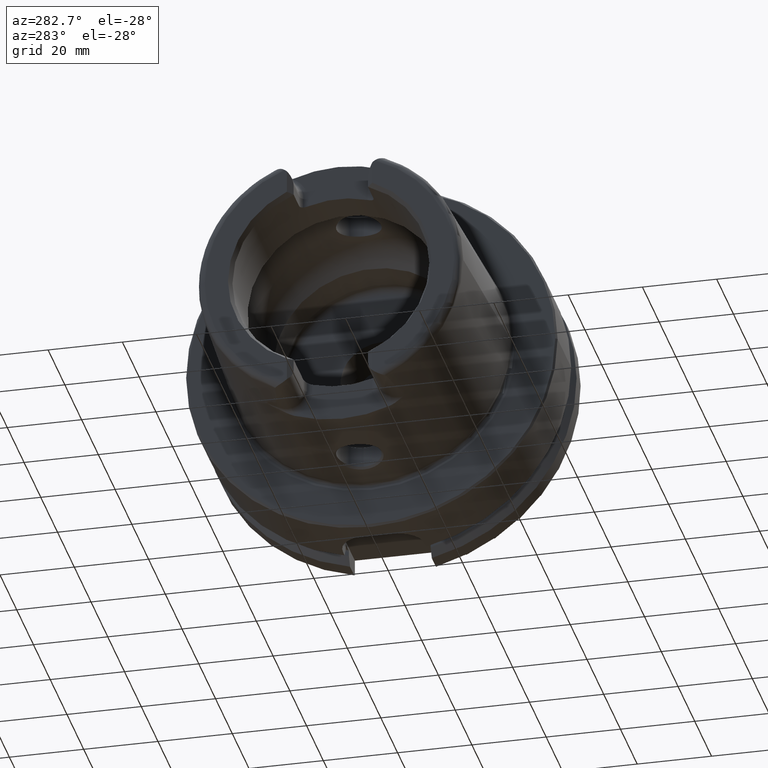
[diagram: clean part render]
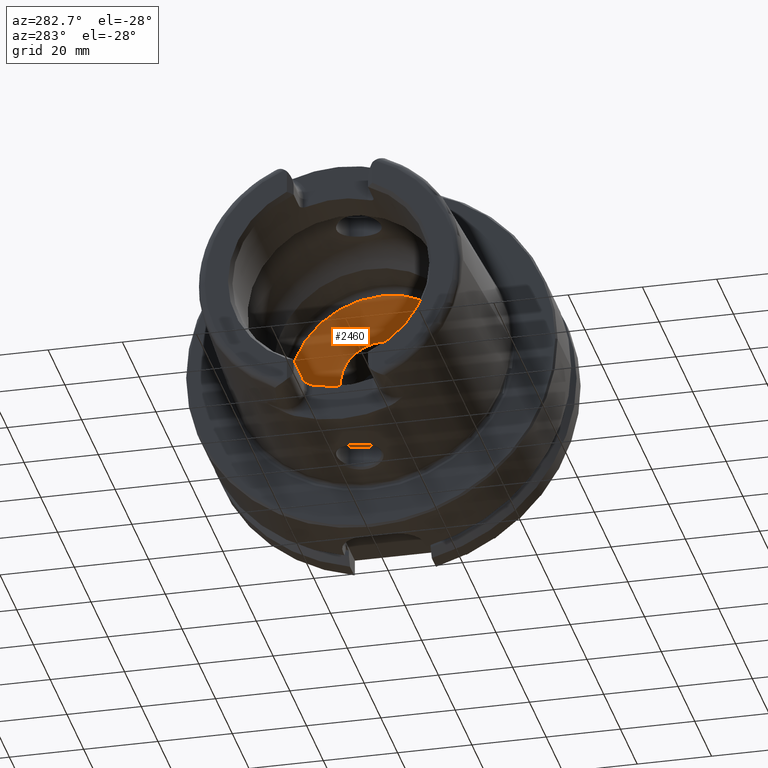
[diagram: same view with one face highlighted and labeled with its STEP entity id]
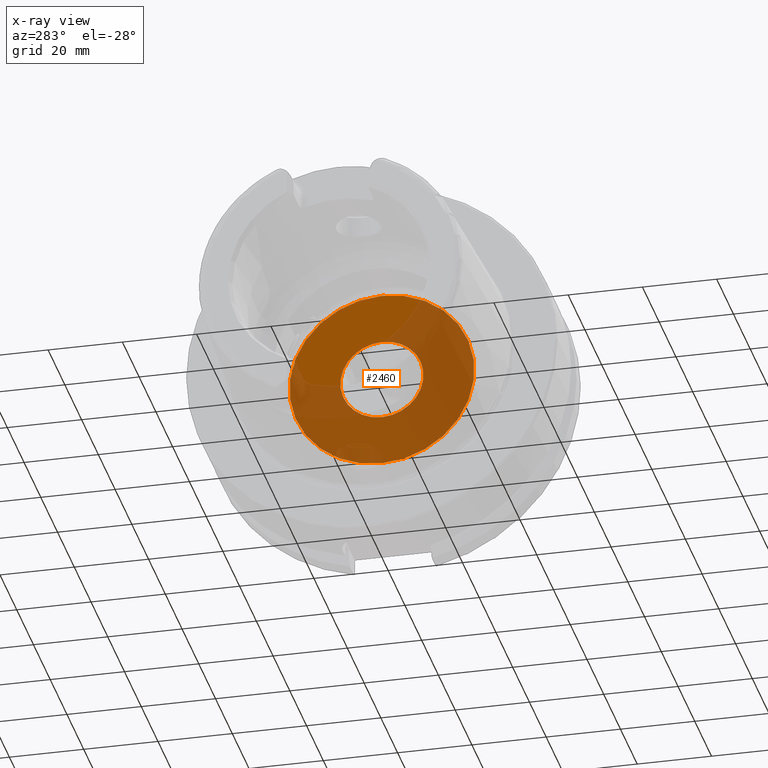
[diagram: x-ray of the same camera — body ghosted, the highlighted face saturated]
A machine part, auxiliary view. The second image highlights one B-rep face of the part: STEP entity #2460.
The next image is the same camera in x-ray: the body ghosted, the highlighted face saturated — about 70% of this face is hidden behind the body in this view.
In plain terms, the highlighted planar face has unit normal (1, 0, 0).
Its self-contained STEP definition (entity closure, byte-faithful):
#99=FACE_BOUND('',#573,.T.);
#227=CIRCLE('',#2750,11.188101);
#234=CIRCLE('',#2762,24.9);
#294=PLANE('',#2761);
#417=FACE_OUTER_BOUND('',#572,.T.);
#572=EDGE_LOOP('',(#2219));
#573=EDGE_LOOP('',(#2220));
#1153=VERTEX_POINT('',#5403);
#1159=VERTEX_POINT('',#5423);
#1511=EDGE_CURVE('',#1153,#1153,#227,.T.);
#1520=EDGE_CURVE('',#1159,#1159,#234,.T.);
#2219=ORIENTED_EDGE('',*,*,#1520,.T.);
#2220=ORIENTED_EDGE('',*,*,#1511,.T.);
#2460=ADVANCED_FACE('',(#417,#99),#294,.F.);
#2750=AXIS2_PLACEMENT_3D('',#5404,#3414,#3415);
#2761=AXIS2_PLACEMENT_3D('',#5422,#3438,#3439);
#2762=AXIS2_PLACEMENT_3D('',#5424,#3440,#3441);
#3414=DIRECTION('center_axis',(1.,0.,0.));
#3415=DIRECTION('ref_axis',(0.,0.,1.));
#3438=DIRECTION('center_axis',(1.,0.,0.));
#3439=DIRECTION('ref_axis',(0.,0.,-1.));
#3440=DIRECTION('center_axis',(-1.,0.,0.));
#3441=DIRECTION('ref_axis',(0.,0.,1.));
#5403=CARTESIAN_POINT('',(12.5,-1.37014720781873E-15,-11.188101));
#5404=CARTESIAN_POINT('Origin',(12.5,0.,0.));
#5422=CARTESIAN_POINT('Origin',(12.5,24.9,0.));
#5423=CARTESIAN_POINT('',(12.5,-3.04937052987691E-15,-24.9));
#5424=CARTESIAN_POINT('Origin',(12.5,0.,0.));